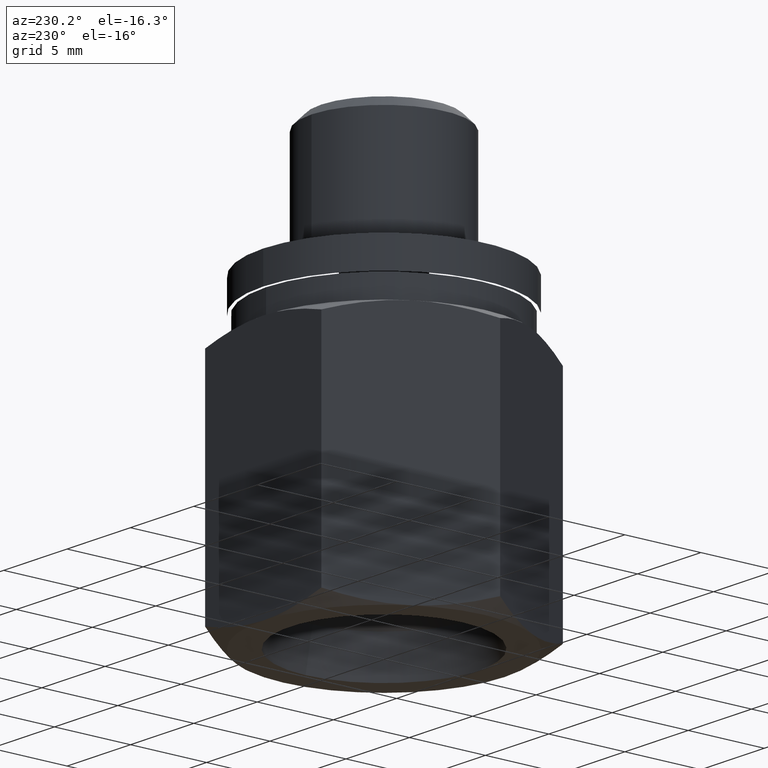
[diagram: clean part render]
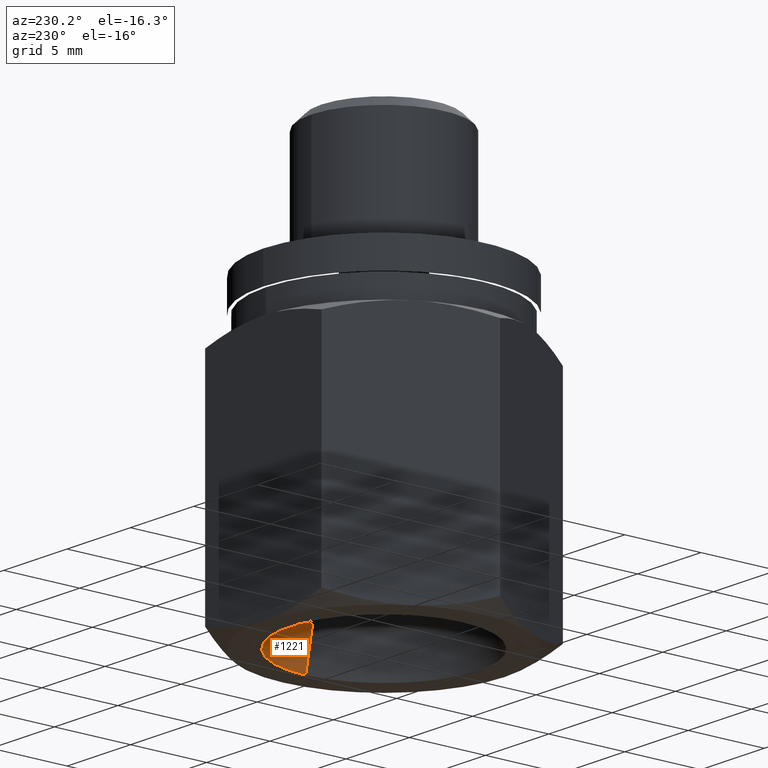
[diagram: same view with one face highlighted and labeled with its STEP entity id]
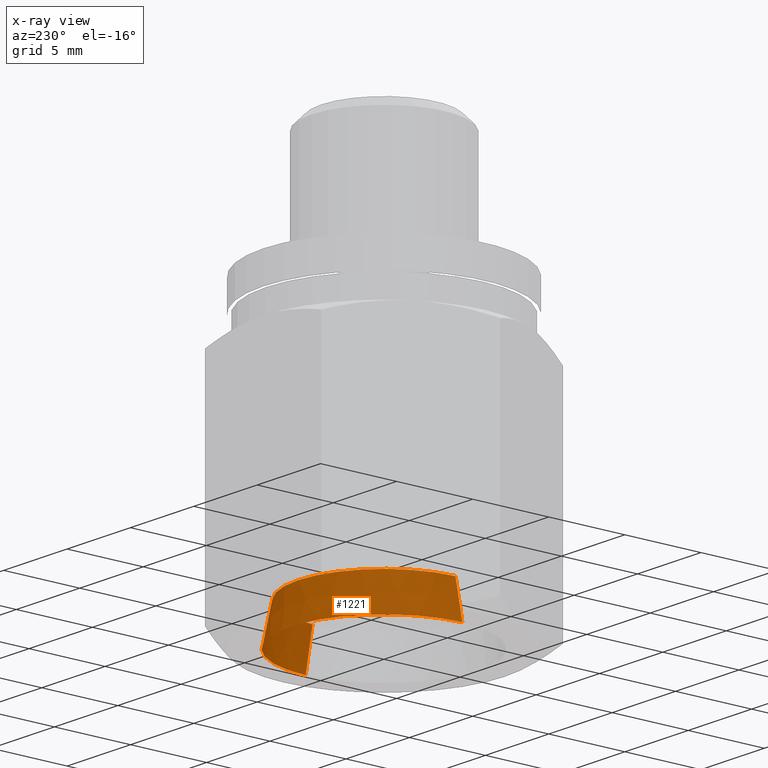
[diagram: x-ray of the same camera — body ghosted, the highlighted face saturated]
A machine part, auxiliary view. The second image highlights one B-rep face of the part: STEP entity #1221.
The next image is the same camera in x-ray: the body ghosted, the highlighted face saturated — about 1% of this face is hidden behind the body in this view.
In plain terms, the highlighted conical surface has half-angle 12 deg.
Its self-contained STEP definition (entity closure, byte-faithful):
#475=CARTESIAN_POINT('',(0.E0,0.E0,1.E-2));
#476=DIRECTION('',(0.E0,0.E0,1.E0));
#477=DIRECTION('',(1.E0,0.E0,0.E0));
#478=AXIS2_PLACEMENT_3D('',#475,#476,#477);
#544=DIRECTION('',(2.079116908178E-1,0.E0,-9.781476007338E-1));
#545=VECTOR('',#544,1.027452297839E-1);
#546=CARTESIAN_POINT('',(2.221380655522E-1,0.E0,1.105E-1));
#547=LINE('',#546,#545);
#548=DIRECTION('',(-2.079116908178E-1,0.E0,-9.781476007338E-1));
#549=VECTOR('',#548,1.027452297839E-1);
#550=CARTESIAN_POINT('',(-2.221380655522E-1,0.E0,1.105E-1));
#551=LINE('',#550,#549);
#552=CARTESIAN_POINT('',(0.E0,0.E0,1.105E-1));
#553=DIRECTION('',(0.E0,0.E0,1.E0));
#554=DIRECTION('',(1.E0,0.E0,0.E0));
#555=AXIS2_PLACEMENT_3D('',#552,#553,#554);
#625=CARTESIAN_POINT('',(2.221380655522E-1,0.E0,1.105E-1));
#626=VERTEX_POINT('',#625);
#627=CARTESIAN_POINT('',(2.435E-1,0.E0,1.E-2));
#628=VERTEX_POINT('',#627);
#633=CARTESIAN_POINT('',(-2.221380655522E-1,0.E0,1.105E-1));
#634=VERTEX_POINT('',#633);
#635=CARTESIAN_POINT('',(-2.435E-1,0.E0,1.E-2));
#636=VERTEX_POINT('',#635);
#1210=CARTESIAN_POINT('',(0.E0,0.E0,6.025E-2));
#1211=DIRECTION('',(0.E0,0.E0,-1.E0));
#1212=DIRECTION('',(1.E0,0.E0,0.E0));
#1213=AXIS2_PLACEMENT_3D('',#1210,#1211,#1212);
#1214=CONICAL_SURFACE('',#1213,2.328190327761E-1,1.2E1);
#1215=ORIENTED_EDGE('',*,*,#1101,.T.);
#1216=ORIENTED_EDGE('',*,*,#1137,.T.);
#1217=ORIENTED_EDGE('',*,*,#1104,.F.);
#1218=ORIENTED_EDGE('',*,*,#1196,.F.);
#1219=EDGE_LOOP('',(#1215,#1216,#1217,#1218));
#1220=FACE_OUTER_BOUND('',#1219,.F.);
#479=CIRCLE('',#478,2.435E-1);
#556=CIRCLE('',#555,2.221380655522E-1);
#1101=EDGE_CURVE('',#626,#628,#547,.T.);
#1104=EDGE_CURVE('',#634,#636,#551,.T.);
#1137=EDGE_CURVE('',#628,#636,#479,.T.);
#1196=EDGE_CURVE('',#626,#634,#556,.T.);
#1221=ADVANCED_FACE('',(#1220),#1214,.F.);